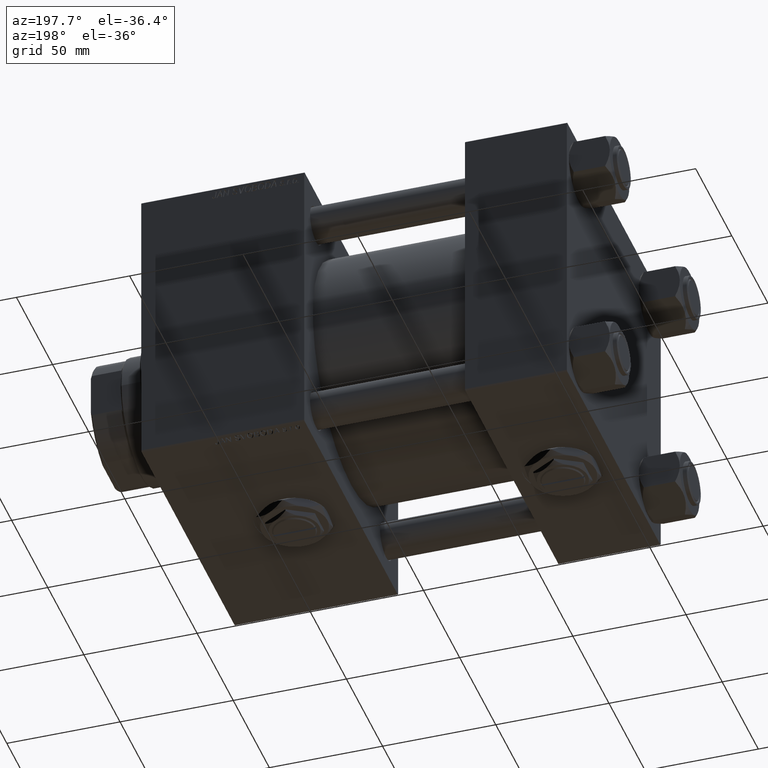
[diagram: clean part render]
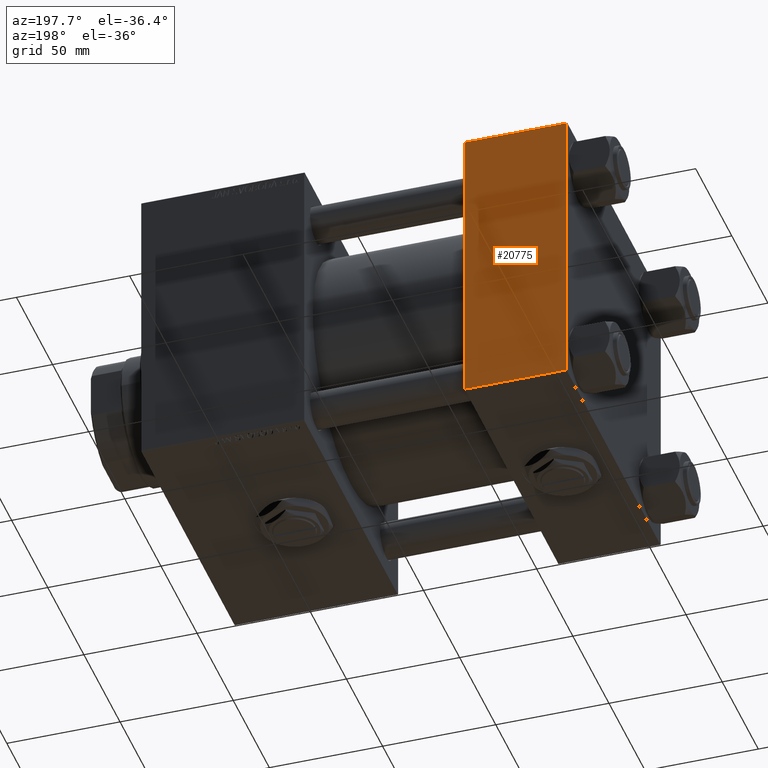
[diagram: same view with one face highlighted and labeled with its STEP entity id]
A machine part, auxiliary view. The second image highlights one B-rep face of the part: STEP entity #20775.
In plain terms, the highlighted planar face has unit normal (0, 1, 0).
Its self-contained STEP definition (entity closure, byte-faithful):
#1724 = CARTESIAN_POINT ( 'NONE',  ( 0.000000000000000000, 65.00000000000000000, 65.00000000000001421 ) ) ;
#4204 = EDGE_LOOP ( 'NONE', ( #45427, #11317, #25974, #15705 ) ) ;
#6619 = CARTESIAN_POINT ( 'NONE',  ( 45.00000000000000000, 65.00000000000000000, 64.49999999999998579 ) ) ;
#6798 = VERTEX_POINT ( 'NONE', #24920 ) ;
#9369 = VERTEX_POINT ( 'NONE', #31264 ) ;
#10130 = VECTOR ( 'NONE', #35272, 1000.000000000000000 ) ;
#11317 = ORIENTED_EDGE ( 'NONE', *, *, #13786, .T. ) ;
#13786 = EDGE_CURVE ( 'NONE', #9369, #6798, #23450, .T. ) ;
#14005 = DIRECTION ( 'NONE',  ( 0.000000000000000000, -0.000000000000000000, 1.000000000000000000 ) ) ;
#15437 = CARTESIAN_POINT ( 'NONE',  ( 45.00000000000000000, 65.00000000000000000, -64.49999999999995737 ) ) ;
#15705 = ORIENTED_EDGE ( 'NONE', *, *, #23601, .T. ) ;
#16674 = CARTESIAN_POINT ( 'NONE',  ( 0.000000000000000000, 65.00000000000000000, 64.49999999999998579 ) ) ;
#17652 = CARTESIAN_POINT ( 'NONE',  ( 45.00000000000000000, 65.00000000000000000, 64.49999999999998579 ) ) ;
#18001 = CARTESIAN_POINT ( 'NONE',  ( 45.00000000000000000, 65.00000000000000000, 65.00000000000001421 ) ) ;
#18429 = LINE ( 'NONE', #18959, #10130 ) ;
#18959 = CARTESIAN_POINT ( 'NONE',  ( 45.00000000000000000, 65.00000000000000000, 65.00000000000001421 ) ) ;
#20775 = ADVANCED_FACE ( 'NONE', ( #42327 ), #45542, .T. ) ;
#22287 = DIRECTION ( 'NONE',  ( 0.000000000000000000, 0.000000000000000000, -1.000000000000000000 ) ) ;
#22901 = DIRECTION ( 'NONE',  ( 1.000000000000000000, 0.000000000000000000, 0.000000000000000000 ) ) ;
#23450 = LINE ( 'NONE', #15437, #33776 ) ;
#23601 = EDGE_CURVE ( 'NONE', #30122, #35580, #43203, .T. ) ;
#24920 = CARTESIAN_POINT ( 'NONE',  ( 0.000000000000000000, 65.00000000000000000, -64.49999999999995737 ) ) ;
#25974 = ORIENTED_EDGE ( 'NONE', *, *, #46680, .F. ) ;
#28357 = VECTOR ( 'NONE', #22287, 1000.000000000000000 ) ;
#30122 = VERTEX_POINT ( 'NONE', #16674 ) ;
#30826 = VECTOR ( 'NONE', #22901, 1000.000000000000000 ) ;
#31209 = DIRECTION ( 'NONE',  ( -1.000000000000000000, 0.000000000000000000, 0.000000000000000000 ) ) ;
#31264 = CARTESIAN_POINT ( 'NONE',  ( 45.00000000000000000, 65.00000000000000000, -64.49999999999995737 ) ) ;
#31475 = AXIS2_PLACEMENT_3D ( 'NONE', #18001, #49551, #14005 ) ;
#33776 = VECTOR ( 'NONE', #31209, 1000.000000000000000 ) ;
#34860 = EDGE_CURVE ( 'NONE', #35580, #9369, #18429, .T. ) ;
#35272 = DIRECTION ( 'NONE',  ( 0.000000000000000000, 0.000000000000000000, -1.000000000000000000 ) ) ;
#35580 = VERTEX_POINT ( 'NONE', #17652 ) ;
#38338 = LINE ( 'NONE', #1724, #28357 ) ;
#42327 = FACE_OUTER_BOUND ( 'NONE', #4204, .T. ) ;
#43203 = LINE ( 'NONE', #6619, #30826 ) ;
#45427 = ORIENTED_EDGE ( 'NONE', *, *, #34860, .T. ) ;
#45542 = PLANE ( 'NONE',  #31475 ) ;
#46680 = EDGE_CURVE ( 'NONE', #30122, #6798, #38338, .T. ) ;
#49551 = DIRECTION ( 'NONE',  ( -0.000000000000000000, 1.000000000000000000, 0.000000000000000000 ) ) ;